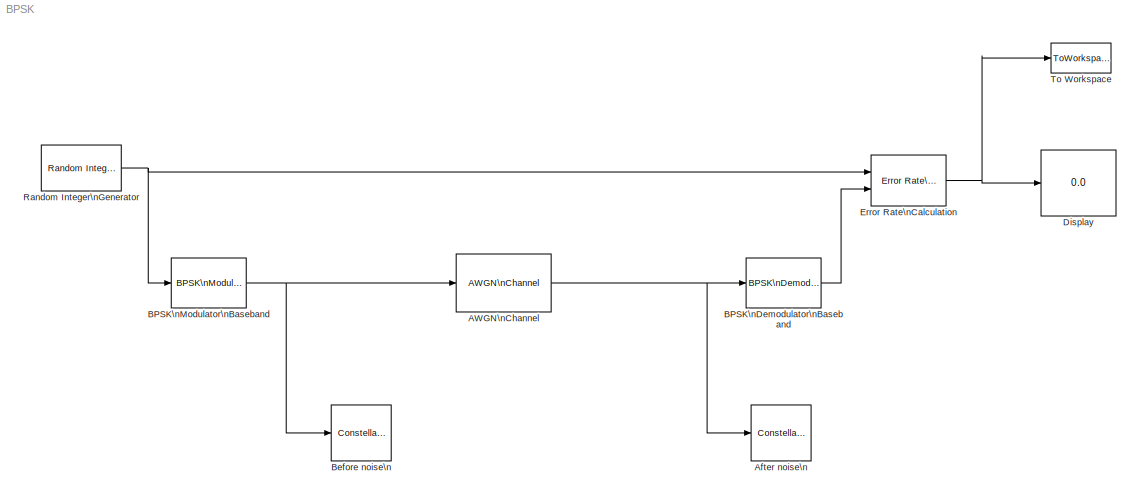
MODEL BPSK
KIND model
BLOCK [Reference] AWGN\nChannel  REF=commchan3/AWGN\nChannel
  EbNodB = EbNo
  EsNodB = 10
  InputProcessing = Columns as channels (frame based)
  Ports = [1, 1]
  Ps = 1
  SID = 1
  SNRdB = 10
  SourceBlock = commchan3/AWGN\nChannel
  SourceType = AWGN Channel
  Tsym = 1
  UserData = DataTag0
  UserDataPersistent = on
  bitsPerSym = 1
  noiseMode = Signal to noise ratio  (Eb/No)
  seed = 67
  variance = 1
BLOCK [ConstellationDiagram] After noise\n
  Ports = [1]
  SID = 9
  ScopeSpecificationString = comm.scopes.ConstellationDiagramBlockCfg('CurrentConfiguration', extmgr.ConfigurationSet(extmgr.Configuration('Core','General UI',true),extmgr.Configuration('Core','Source UI',true),extmgr.Configuration('Sources','WiredSimulink',true),extmgr.Configuration('Visuals','Constellation',true,'AxesProperties',struct('Color',[0 0 0],'XColor',[0.686274509803922 0.686274509803922 0.686274509803922],'YColor'...<+702ch>
BLOCK [Reference] BPSK\nDemodulator\nBaseband  REF=commdigbbndpm3/BPSK\nDemodulator\nBaseband
  DecType = Hard decision
  Ph = 0
  Ports = [1, 1]
  SID = 2
  SourceBlock = commdigbbndpm3/BPSK\nDemodulator\nBaseband
  SourceType = BPSK Demodulator Baseband
  VarSource = Dialog
  Variance = 1
  derotateFactorDTMode = Same word length as input
  derotateFactorDataTypeStr = Inherit: Same word length as input
  derotateFactorLastDataTypeStr = Inherit: Same word length as input
  derotateFactorWordLen = 16
  outDtype = Inherit via internal rule
BLOCK [Reference] BPSK\nModulator\nBaseband  REF=commdigbbndpm3/BPSK\nModulator\nBaseband
  Ph = 0
  Ports = [1, 1]
  SID = 3
  SourceBlock = commdigbbndpm3/BPSK\nModulator\nBaseband
  SourceType = BPSK Modulator Baseband
  outDataTypeStr = double
  outDtype = double
  outFracLen = 15
  outFracLenMode = Best precision
  outLastDataTypeStr = double
  outUDDataType = sfix(16)
  outWordLen = 16
BLOCK [ConstellationDiagram] Before noise\n
  Ports = [1]
  SID = 11
  ScopeSpecificationString = comm.scopes.ConstellationDiagramBlockCfg('CurrentConfiguration', extmgr.ConfigurationSet(extmgr.Configuration('Core','General UI',true),extmgr.Configuration('Core','Source UI',true),extmgr.Configuration('Sources','WiredSimulink',true),extmgr.Configuration('Visuals','Constellation',true,'AxesProperties',struct('Color',[0 0 0],'XColor',[0.686274509803922 0.686274509803922 0.686274509803922],'YColor'...<+700ch>
BLOCK [Display] Display
  Decimation = 1
  Ports = [1]
  SID = 4
BLOCK [Reference] Error Rate\nCalculation  REF=commsink2/Error Rate\nCalculation
  N = 0
  PMode = Port
  Ports = [2, 1]
  RsMode2 = off
  SID = 5
  SourceBlock = commsink2/Error Rate\nCalculation
  SourceType = Error Rate Calculation
  WsName = ErrorVec
  cp_mode = Entire frame
  maxBits = 1e4
  numErr = 100
  st_delay = 0
  stop = off
  subframe = []
BLOCK [Reference] Random Integer\nGenerator  REF=commrandsrc3/Random Integer\nGenerator
  OutputDataType = double
  Ports = [0, 1]
  SID = 6
  SampleTime = 1
  SamplesPerFrame = 100
  Seed = 37
  SeedSource = Parameter
  SetSize = 2
  SimulateUsing = Interpreted execution
  SourceBlock = commrandsrc3/Random Integer\nGenerator
  SourceType = Random Integer Generator
BLOCK [ToWorkspace] To Workspace
  FixptAsFi = on
  MaxDataPoints = 2
  Ports = [1]
  SID = 12
  SampleTime = -1
  Save2DSignal = 2-D array (concatenate along first dimension)
  VariableName = bpskBER
NET AWGN\nChannel:1 -> After noise\n:1, BPSK\nDemodulator\nBaseband:1
LINE BPSK\nDemodulator\nBaseband:1 -> Error Rate\nCalculation:2
NET BPSK\nModulator\nBaseband:1 -> AWGN\nChannel:1, Before noise\n:1
NET Error Rate\nCalculation:1 -> Display:1, To Workspace:1
NET Random Integer\nGenerator:1 -> BPSK\nModulator\nBaseband:1, Error Rate\nCalculation:1
note: NET lines group one-source signal fan-out (src -> all destinations, sorted); 1:1 wires keep LINE
